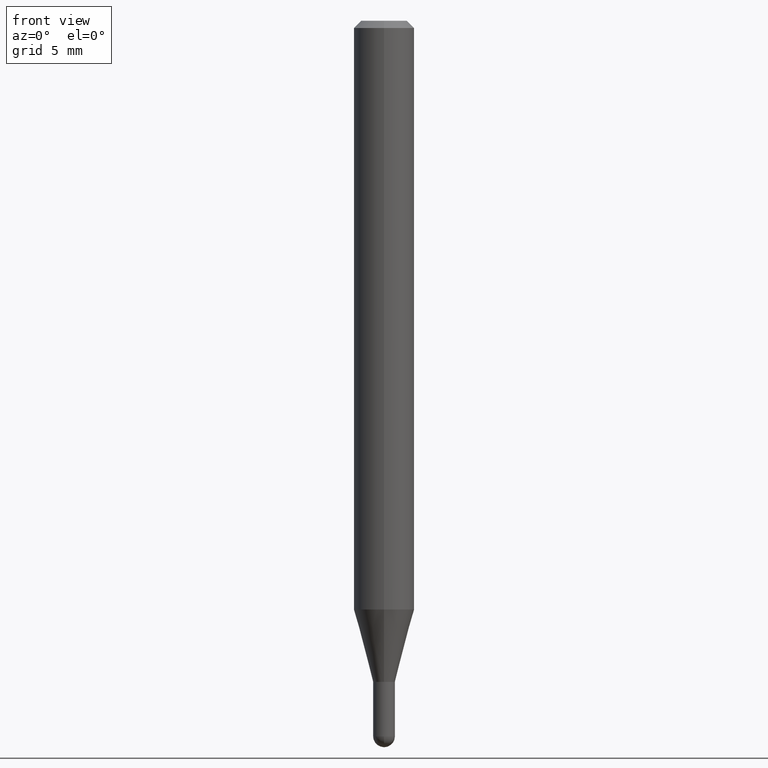
[diagram: clean part render]
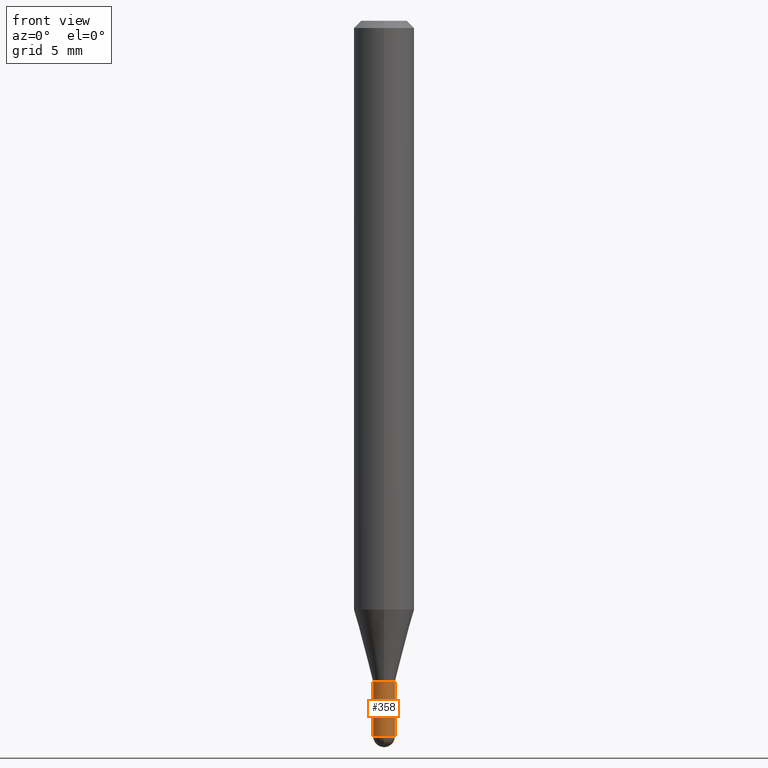
[diagram: same view with one face highlighted and labeled with its STEP entity id]
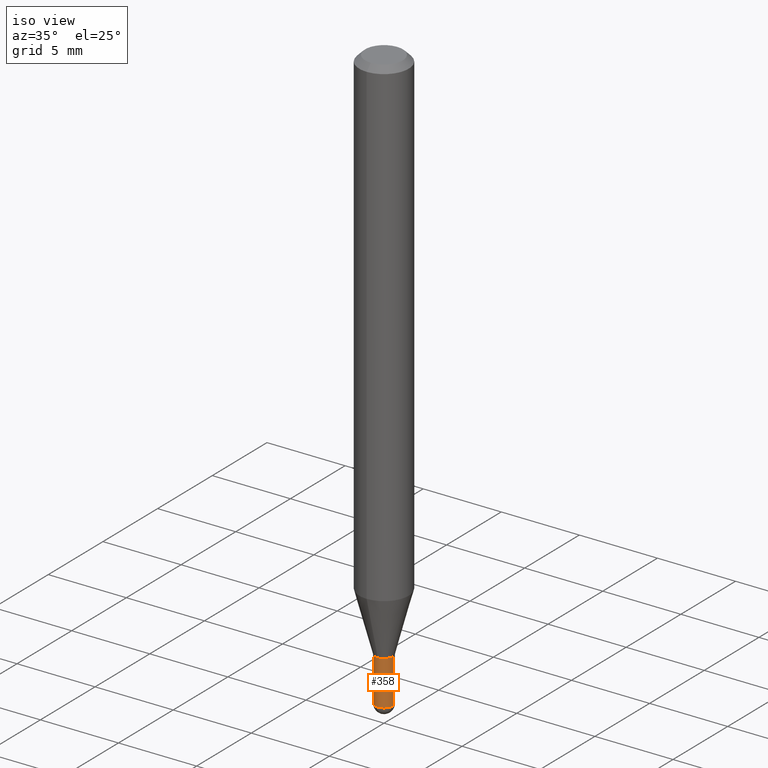
[diagram: same view with one face highlighted and labeled with its STEP entity id]
A machine part, front view. The second image highlights one B-rep face of the part: STEP entity #358.
A second angle (iso view) of the same face is appended — the face is thin or edge-on in the first view.
In plain terms, the highlighted cylindrical surface (edge-blend (fillet) strip) has radius 0.5715 mm, axis along (-0, 0, 1).
Its self-contained STEP definition (entity closure, byte-faithful):
#5 = DIRECTION ( 'NONE',  ( 1.000000000000000000, -6.982962677686269077E-15, 0.000000000000000000 ) ) ;
#25 = EDGE_CURVE ( 'NONE', #275, #79, #158, .T. ) ;
#27 = CARTESIAN_POINT ( 'NONE',  ( -0.02249999999999999917, -4.802395737284797637E-15, -1.364999999999999991 ) ) ;
#35 = EDGE_CURVE ( 'NONE', #160, #190, #75, .T. ) ;
#44 = CARTESIAN_POINT ( 'NONE',  ( 3.613180161138538918E-29, -5.158663678140747361E-15, -1.477500000000000036 ) ) ;
#49 = DIRECTION ( 'NONE',  ( 1.000000000000000000, -6.982962677686269077E-15, 0.000000000000000000 ) ) ;
#60 = EDGE_CURVE ( 'NONE', #190, #275, #155, .T. ) ;
#63 = CARTESIAN_POINT ( 'NONE',  ( 3.338064920442711836E-29, -4.765872027520893280E-15, -1.364999999999999991 ) ) ;
#66 = CARTESIAN_POINT ( 'NONE',  ( -1.571166602479050240E-16, -0.02250000000000518599, -1.477500000000000036 ) ) ;
#71 = LINE ( 'NONE', #417, #510 ) ;
#75 = CIRCLE ( 'NONE', #189, 0.02249999999999999917 ) ;
#79 = VERTEX_POINT ( 'NONE', #166 ) ;
#85 = CARTESIAN_POINT ( 'NONE',  ( 3.613180161138538918E-29, -5.158663678140747361E-15, -1.477500000000000036 ) ) ;
#96 = AXIS2_PLACEMENT_3D ( 'NONE', #283, #156, #478 ) ;
#139 = AXIS2_PLACEMENT_3D ( 'NONE', #63, #486, #362 ) ;
#145 = CIRCLE ( 'NONE', #139, 0.02249999999999999917 ) ;
#155 = CIRCLE ( 'NONE', #448, 0.02249999999999999917 ) ;
#156 = DIRECTION ( 'NONE',  ( -2.445468806185136597E-29, 3.491481338843145583E-15, 1.000000000000000000 ) ) ;
#158 = LINE ( 'NONE', #356, #374 ) ;
#160 = VERTEX_POINT ( 'NONE', #186 ) ;
#166 = CARTESIAN_POINT ( 'NONE',  ( 0.02249999999999999917, -4.922988687768834913E-15, -1.364999999999999991 ) ) ;
#186 = CARTESIAN_POINT ( 'NONE',  ( -0.02249999999999999917, -4.802395737284797637E-15, -1.477500000000000036 ) ) ;
#188 = EDGE_CURVE ( 'NONE', #160, #233, #71, .T. ) ;
#189 = AXIS2_PLACEMENT_3D ( 'NONE', #85, #474, #5 ) ;
#190 = VERTEX_POINT ( 'NONE', #66 ) ;
#233 = VERTEX_POINT ( 'NONE', #27 ) ;
#236 = ORIENTED_EDGE ( 'NONE', *, *, #188, .F. ) ;
#269 = DIRECTION ( 'NONE',  ( -2.445468806185136877E-29, 3.491481338843145188E-15, 1.000000000000000000 ) ) ;
#275 = VERTEX_POINT ( 'NONE', #439 ) ;
#283 = CARTESIAN_POINT ( 'NONE',  ( 0.000000000000000000, 0.000000000000000000, 0.000000000000000000 ) ) ;
#296 = ORIENTED_EDGE ( 'NONE', *, *, #35, .T. ) ;
#314 = FACE_OUTER_BOUND ( 'NONE', #318, .T. ) ;
#315 = CYLINDRICAL_SURFACE ( 'NONE', #96, 0.02249999999999999917 ) ;
#318 = EDGE_LOOP ( 'NONE', ( #236, #296, #432, #471, #341 ) ) ;
#341 = ORIENTED_EDGE ( 'NONE', *, *, #453, .F. ) ;
#356 = CARTESIAN_POINT ( 'NONE',  ( 0.02249999999999999917, -1.571166602479409911E-16, 1.097139774554085483E-30 ) ) ;
#358 = ADVANCED_FACE ( 'NONE', ( #314 ), #315, .T. ) ;
#362 = DIRECTION ( 'NONE',  ( 1.000000000000000000, -6.982962677686269077E-15, 0.000000000000000000 ) ) ;
#374 = VECTOR ( 'NONE', #434, 39.37007874015748143 ) ;
#399 = DIRECTION ( 'NONE',  ( -2.445468806185136597E-29, 3.491481338843145583E-15, 1.000000000000000000 ) ) ;
#417 = CARTESIAN_POINT ( 'NONE',  ( -0.02249999999999999917, 1.598721155460225359E-16, -1.106760395307353780E-30 ) ) ;
#432 = ORIENTED_EDGE ( 'NONE', *, *, #60, .T. ) ;
#434 = DIRECTION ( 'NONE',  ( -2.445468806185136877E-29, 3.491481338843145188E-15, 1.000000000000000000 ) ) ;
#439 = CARTESIAN_POINT ( 'NONE',  ( 0.02249999999999999917, -5.119384513078760769E-15, -1.477500000000000036 ) ) ;
#448 = AXIS2_PLACEMENT_3D ( 'NONE', #44, #399, #49 ) ;
#453 = EDGE_CURVE ( 'NONE', #233, #79, #145, .T. ) ;
#471 = ORIENTED_EDGE ( 'NONE', *, *, #25, .T. ) ;
#474 = DIRECTION ( 'NONE',  ( -2.445468806185136597E-29, 3.491481338843145583E-15, 1.000000000000000000 ) ) ;
#478 = DIRECTION ( 'NONE',  ( 1.000000000000000000, -6.982962677686266711E-15, 4.876176775795935793E-29 ) ) ;
#486 = DIRECTION ( 'NONE',  ( -2.445468806185136597E-29, 3.491481338843145583E-15, 1.000000000000000000 ) ) ;
#510 = VECTOR ( 'NONE', #269, 39.37007874015748143 ) ;